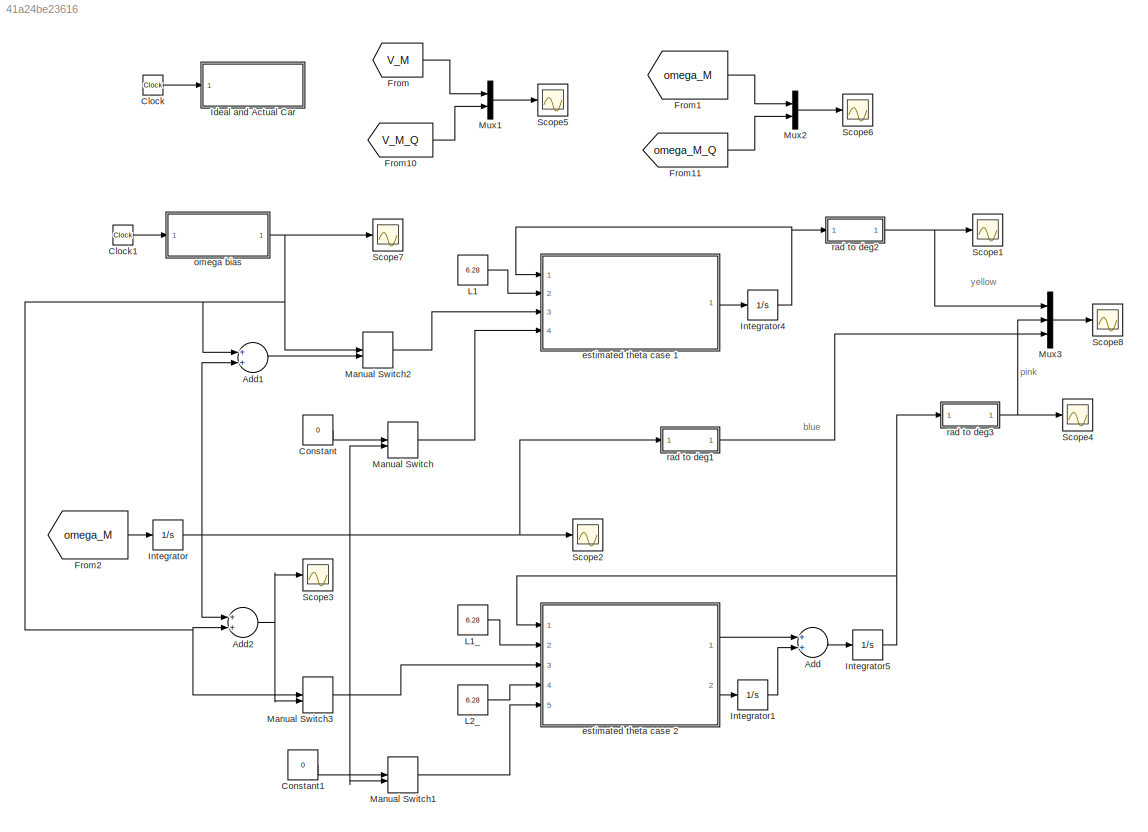
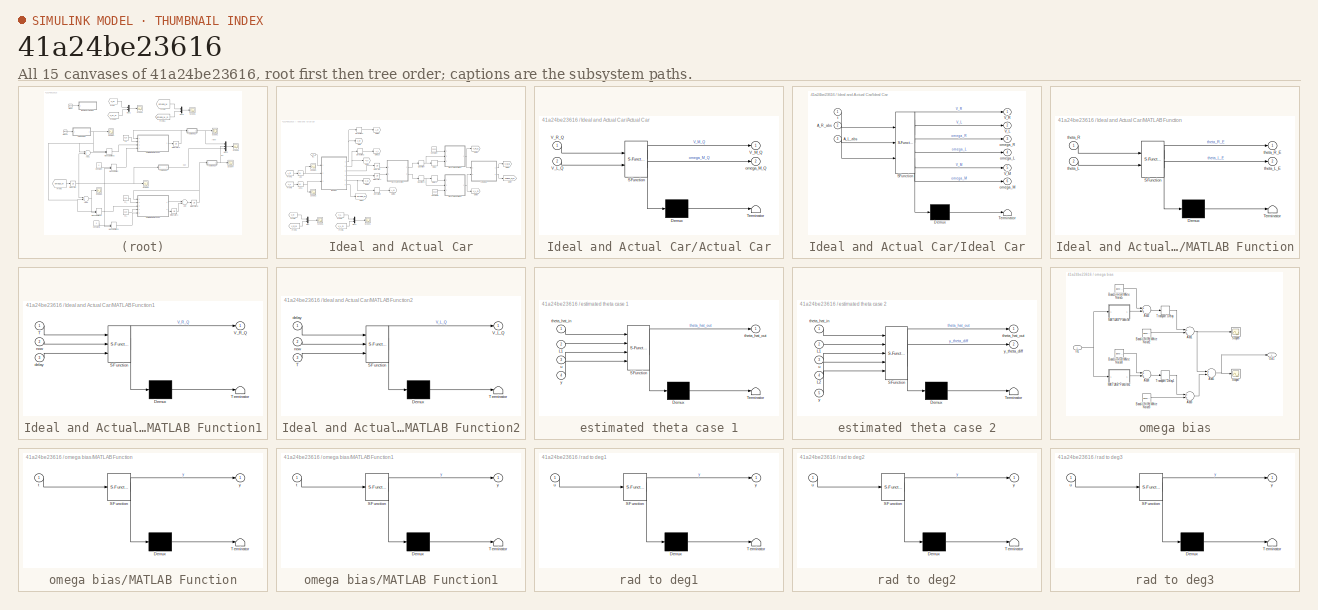
[diagram: thumbnail index - all 15 canvases of the model, root first then tree order]
MODEL slx_41a24be23616
KIND model
BLOCK [Sum] Add
  InputSameDT = off
  OutDataTypeStr = Inherit: Inherit via internal rule
  Ports = [2, 1]
  SaturateOnIntegerOverflow = off
BLOCK [Sum] Add1
  InputSameDT = off
  OutDataTypeStr = Inherit: Inherit via internal rule
  Ports = [2, 1]
  SaturateOnIntegerOverflow = off
BLOCK [Sum] Add2
  InputSameDT = off
  OutDataTypeStr = Inherit: Inherit via internal rule
  Ports = [2, 1]
  SaturateOnIntegerOverflow = off
BLOCK [Clock] Clock
BLOCK [Clock] Clock1
BLOCK [Constant] Constant
  Value = 0
BLOCK [Constant] Constant1
  Value = 0
BLOCK [From] From
  GotoTag = V_M
  TagVisibility = global
BLOCK [From] From1
  GotoTag = omega_M
  TagVisibility = global
BLOCK [From] From10
  GotoTag = V_M_Q
  TagVisibility = global
BLOCK [From] From11
  GotoTag = omega_M_Q
  TagVisibility = global
BLOCK [From] From2
  GotoTag = omega_M
  TagVisibility = global
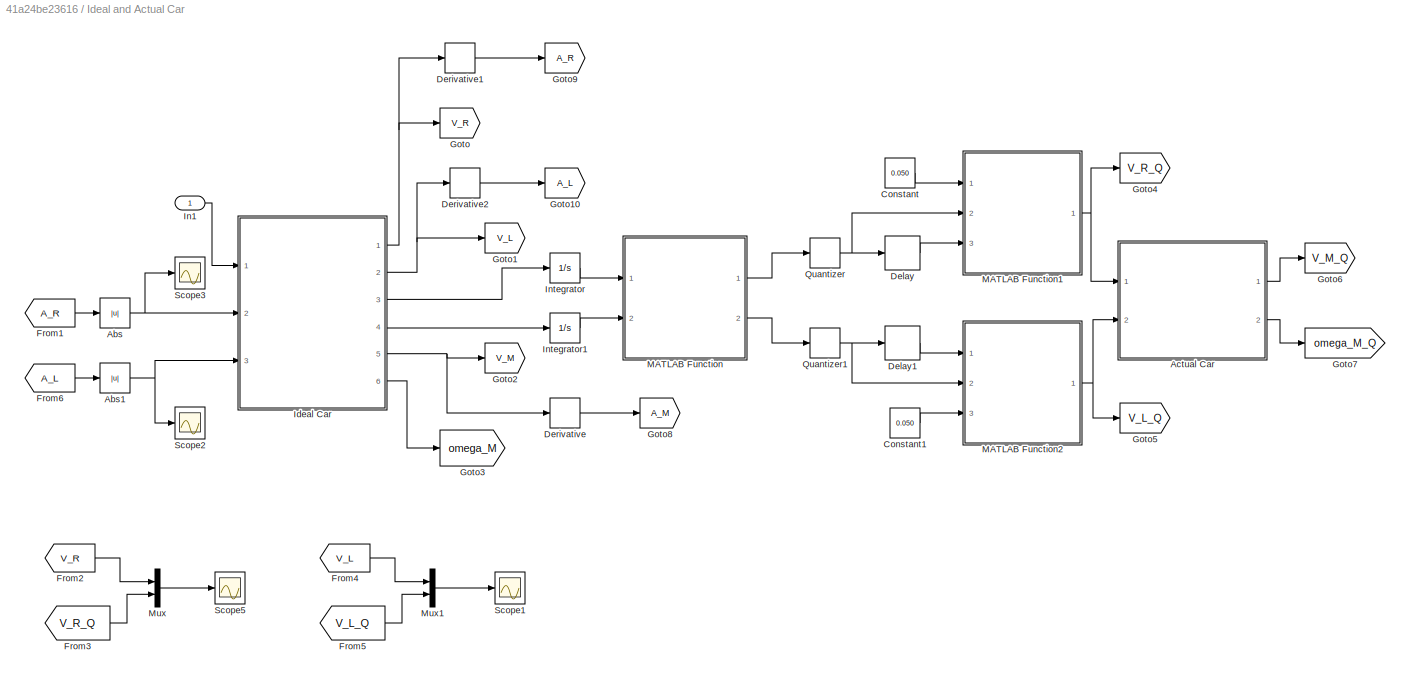
BLOCK [SubSystem] Ideal and Actual Car
  FunctionWithSeparateData = off
  MaskHideContents = off
  MinAlgLoopOccurrences = off
  Opaque = off
  Ports = [1]
  PropExecContextOutsideSubsystem = off
  RTWSystemCode = Auto
  RequestExecContextInheritance = off
BLOCK [Abs] Ideal and Actual Car/Abs
  SaturateOnIntegerOverflow = off
BLOCK [Abs] Ideal and Actual Car/Abs1
  SaturateOnIntegerOverflow = off
BLOCK [SubSystem] Ideal and Actual Car/Actual Car
  ErrorFcn = Stateflow.Translate.translate
  FunctionWithSeparateData = off
  MaskHideContents = off
  MinAlgLoopOccurrences = off
  Opaque = off
  PermitHierarchicalResolution = ExplicitOnly
  Ports = [2, 2]
  PropExecContextOutsideSubsystem = off
  RTWSystemCode = Auto
  RequestExecContextInheritance = off
  SFBlockType = MATLAB Function
  TreatAsAtomicUnit = on
BLOCK [Demux] Ideal and Actual Car/Actual Car/ Demux 
  Outputs = 1
  Ports = [1, 1]
BLOCK [S-Function] Ideal and Actual Car/Actual Car/ SFunction 
  EnableBusSupport = on
  FunctionName = sf_sfun
  Parameters = w
  PortCounts = [2 3]
  Ports = [2, 3]
  Tag = Stateflow S-Function car_sim 5
BLOCK [Terminator] Ideal and Actual Car/Actual Car/ Terminator 
BLOCK [Inport] Ideal and Actual Car/Actual Car/V_L_Q
  IconDisplay = Port number
  Port = 2
BLOCK [Outport] Ideal and Actual Car/Actual Car/V_M_Q
  IconDisplay = Port number
BLOCK [Inport] Ideal and Actual Car/Actual Car/V_R_Q
  IconDisplay = Port number
BLOCK [Outport] Ideal and Actual Car/Actual Car/omega_M_Q
  IconDisplay = Port number
  Port = 2
BLOCK [Constant] Ideal and Actual Car/Constant
  Value = 0.050
BLOCK [Constant] Ideal and Actual Car/Constant1
  Value = 0.050
BLOCK [Delay] Ideal and Actual Car/Delay
  DelayLength = 50
  InputPortMap = u0
  Ports = [1, 1]
BLOCK [Delay] Ideal and Actual Car/Delay1
  DelayLength = 50
  InputPortMap = u0
  Ports = [1, 1]
BLOCK [Derivative] Ideal and Actual Car/Derivative
BLOCK [Derivative] Ideal and Actual Car/Derivative1
BLOCK [Derivative] Ideal and Actual Car/Derivative2
BLOCK [From] Ideal and Actual Car/From1
  GotoTag = A_R
  TagVisibility = global
BLOCK [From] Ideal and Actual Car/From2
  GotoTag = V_R
  TagVisibility = global
BLOCK [From] Ideal and Actual Car/From3
  GotoTag = V_R_Q
  TagVisibility = global
BLOCK [From] Ideal and Actual Car/From4
  GotoTag = V_L
  TagVisibility = global
BLOCK [From] Ideal and Actual Car/From5
  GotoTag = V_L_Q
  TagVisibility = global
BLOCK [From] Ideal and Actual Car/From6
  GotoTag = A_L
  TagVisibility = global
BLOCK [Goto] Ideal and Actual Car/Goto
  GotoTag = V_R
  TagVisibility = global
BLOCK [Goto] Ideal and Actual Car/Goto1
  GotoTag = V_L
  TagVisibility = global
BLOCK [Goto] Ideal and Actual Car/Goto10
  GotoTag = A_L
  TagVisibility = global
BLOCK [Goto] Ideal and Actual Car/Goto2
  GotoTag = V_M
  TagVisibility = global
BLOCK [Goto] Ideal and Actual Car/Goto3
  GotoTag = omega_M
  TagVisibility = global
BLOCK [Goto] Ideal and Actual Car/Goto4
  GotoTag = V_R_Q
  TagVisibility = global
BLOCK [Goto] Ideal and Actual Car/Goto5
  GotoTag = V_L_Q
  TagVisibility = global
BLOCK [Goto] Ideal and Actual Car/Goto6
  GotoTag = V_M_Q
  TagVisibility = global
BLOCK [Goto] Ideal and Actual Car/Goto7
  GotoTag = omega_M_Q
  TagVisibility = global
BLOCK [Goto] Ideal and Actual Car/Goto8
  GotoTag = A_M
  TagVisibility = global
BLOCK [Goto] Ideal and Actual Car/Goto9
  GotoTag = A_R
  TagVisibility = global
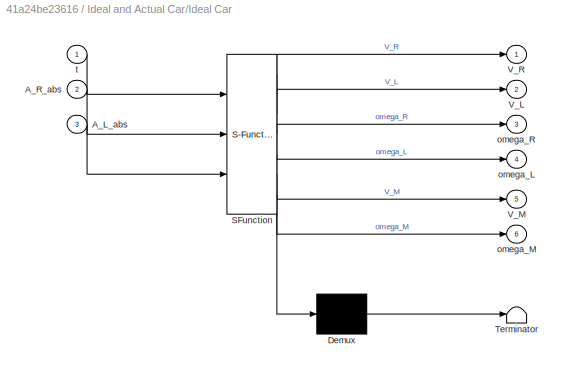
BLOCK [SubSystem] Ideal and Actual Car/Ideal Car
  ErrorFcn = Stateflow.Translate.translate
  FunctionWithSeparateData = off
  MaskHideContents = off
  MinAlgLoopOccurrences = off
  Opaque = off
  PermitHierarchicalResolution = ExplicitOnly
  Ports = [3, 6]
  PropExecContextOutsideSubsystem = off
  RTWSystemCode = Auto
  RequestExecContextInheritance = off
  SFBlockType = MATLAB Function
  TreatAsAtomicUnit = on
BLOCK [Demux] Ideal and Actual Car/Ideal Car/ Demux 
  Outputs = 1
  Ports = [1, 1]
BLOCK [S-Function] Ideal and Actual Car/Ideal Car/ SFunction 
  EnableBusSupport = on
  FunctionName = sf_sfun
  Parameters = r,w
  PortCounts = [3 7]
  Ports = [3, 7]
  Tag = Stateflow S-Function car_sim 2
BLOCK [Terminator] Ideal and Actual Car/Ideal Car/ Terminator 
BLOCK [Inport] Ideal and Actual Car/Ideal Car/A_L_abs
  IconDisplay = Port number
  Port = 3
BLOCK [Inport] Ideal and Actual Car/Ideal Car/A_R_abs
  IconDisplay = Port number
  Port = 2
BLOCK [Outport] Ideal and Actual Car/Ideal Car/V_L
  IconDisplay = Port number
  Port = 2
BLOCK [Outport] Ideal and Actual Car/Ideal Car/V_M
  IconDisplay = Port number
  Port = 5
BLOCK [Outport] Ideal and Actual Car/Ideal Car/V_R
  IconDisplay = Port number
BLOCK [Outport] Ideal and Actual Car/Ideal Car/omega_L
  IconDisplay = Port number
  Port = 4
BLOCK [Outport] Ideal and Actual Car/Ideal Car/omega_M
  IconDisplay = Port number
  Port = 6
BLOCK [Outport] Ideal and Actual Car/Ideal Car/omega_R
  IconDisplay = Port number
  Port = 3
BLOCK [Inport] Ideal and Actual Car/Ideal Car/t
  IconDisplay = Port number
BLOCK [Inport] Ideal and Actual Car/In1
  IconDisplay = Port number
BLOCK [Integrator] Ideal and Actual Car/Integrator
  Ports = [1, 1]
BLOCK [Integrator] Ideal and Actual Car/Integrator1
  Ports = [1, 1]
BLOCK [SubSystem] Ideal and Actual Car/MATLAB Function
  ErrorFcn = Stateflow.Translate.translate
  FunctionWithSeparateData = off
  MaskHideContents = off
  MinAlgLoopOccurrences = off
  Opaque = off
  PermitHierarchicalResolution = ExplicitOnly
  Ports = [2, 2]
  PropExecContextOutsideSubsystem = off
  RTWSystemCode = Auto
  RequestExecContextInheritance = off
  SFBlockType = MATLAB Function
  TreatAsAtomicUnit = on
BLOCK [Demux] Ideal and Actual Car/MATLAB Function/ Demux 
  Outputs = 1
  Ports = [1, 1]
BLOCK [S-Function] Ideal and Actual Car/MATLAB Function/ SFunction 
  EnableBusSupport = on
  FunctionName = sf_sfun
  Parameters = n
  PortCounts = [2 3]
  Ports = [2, 3]
  Tag = Stateflow S-Function car_sim 1
BLOCK [Terminator] Ideal and Actual Car/MATLAB Function/ Terminator 
BLOCK [Inport] Ideal and Actual Car/MATLAB Function/theta_L
  IconDisplay = Port number
  Port = 2
BLOCK [Outport] Ideal and Actual Car/MATLAB Function/theta_L_E
  IconDisplay = Port number
  Port = 2
BLOCK [Inport] Ideal and Actual Car/MATLAB Function/theta_R
  IconDisplay = Port number
BLOCK [Outport] Ideal and Actual Car/MATLAB Function/theta_R_E
  IconDisplay = Port number
BLOCK [SubSystem] Ideal and Actual Car/MATLAB Function1
  ErrorFcn = Stateflow.Translate.translate
  FunctionWithSeparateData = off
  MaskHideContents = off
  MinAlgLoopOccurrences = off
  Opaque = off
  PermitHierarchicalResolution = ExplicitOnly
  Ports = [3, 1]
  PropExecContextOutsideSubsystem = off
  RTWSystemCode = Auto
  RequestExecContextInheritance = off
  SFBlockType = MATLAB Function
  TreatAsAtomicUnit = on
BLOCK [Demux] Ideal and Actual Car/MATLAB Function1/ Demux 
  Outputs = 1
  Ports = [1, 1]
BLOCK [S-Function] Ideal and Actual Car/MATLAB Function1/ SFunction 
  EnableBusSupport = on
  FunctionName = sf_sfun
  Parameters = n,r
  PortCounts = [3 2]
  Ports = [3, 2]
  Tag = Stateflow S-Function car_sim 3
BLOCK [Terminator] Ideal and Actual Car/MATLAB Function1/ Terminator 
BLOCK [Inport] Ideal and Actual Car/MATLAB Function1/T
  IconDisplay = Port number
BLOCK [Outport] Ideal and Actual Car/MATLAB Function1/V_R_Q
  IconDisplay = Port number
BLOCK [Inport] Ideal and Actual Car/MATLAB Function1/delay
  IconDisplay = Port number
  Port = 3
BLOCK [Inport] Ideal and Actual Car/MATLAB Function1/now
  IconDisplay = Port number
  Port = 2
BLOCK [SubSystem] Ideal and Actual Car/MATLAB Function2
  ErrorFcn = Stateflow.Translate.translate
  FunctionWithSeparateData = off
  MaskHideContents = off
  MinAlgLoopOccurrences = off
  Opaque = off
  PermitHierarchicalResolution = ExplicitOnly
  Ports = [3, 1]
  PropExecContextOutsideSubsystem = off
  RTWSystemCode = Auto
  RequestExecContextInheritance = off
  SFBlockType = MATLAB Function
  TreatAsAtomicUnit = on
BLOCK [Demux] Ideal and Actual Car/MATLAB Function2/ Demux 
  Outputs = 1
  Ports = [1, 1]
BLOCK [S-Function] Ideal and Actual Car/MATLAB Function2/ SFunction 
  EnableBusSupport = on
  FunctionName = sf_sfun
  Parameters = n,r
  PortCounts = [3 2]
  Ports = [3, 2]
  Tag = Stateflow S-Function car_sim 4
BLOCK [Terminator] Ideal and Actual Car/MATLAB Function2/ Terminator 
BLOCK [Inport] Ideal and Actual Car/MATLAB Function2/T
  IconDisplay = Port number
  Port = 3
BLOCK [Outport] Ideal and Actual Car/MATLAB Function2/V_L_Q
  IconDisplay = Port number
BLOCK [Inport] Ideal and Actual Car/MATLAB Function2/delay
  IconDisplay = Port number
BLOCK [Inport] Ideal and Actual Car/MATLAB Function2/now
  IconDisplay = Port number
  Port = 2
BLOCK [Mux] Ideal and Actual Car/Mux
  DisplayOption = bar
  Inputs = 2
  Ports = [2, 1]
BLOCK [Mux] Ideal and Actual Car/Mux1
  DisplayOption = bar
  Inputs = 2
  Ports = [2, 1]
BLOCK [Quantizer] Ideal and Actual Car/Quantizer
  QuantizationInterval = 1
BLOCK [Quantizer] Ideal and Actual Car/Quantizer1
  QuantizationInterval = 1
BLOCK [Scope] Ideal and Actual Car/Scope1
  DataFormat = StructureWithTime
  Floating = off
  LimitDataPoints = off
  NumInputPorts = 1
  Ports = [1]
  SampleTime = 0
  SaveName = ScopeData2
  ShowLegends = off
BLOCK [Scope] Ideal and Actual Car/Scope2
  DataFormat = StructureWithTime
  Floating = off
  LimitDataPoints = off
  NumInputPorts = 1
  Ports = [1]
  SampleTime = 0
  SaveName = ScopeData12
  ShowLegends = off
BLOCK [Scope] Ideal and Actual Car/Scope3
  DataFormat = StructureWithTime
  Floating = off
  LimitDataPoints = off
  NumInputPorts = 1
  Ports = [1]
  SampleTime = 0
  SaveName = ScopeData14
  ShowLegends = off
BLOCK [Scope] Ideal and Actual Car/Scope5
  DataFormat = StructureWithTime
  Floating = off
  LimitDataPoints = off
  NumInputPorts = 1
  Ports = [1]
  SampleTime = 0
  SaveName = ScopeData1
  ShowLegends = off
  TimeRange = 10
  YMax = 1
  YMin = -1
BLOCK [Integrator] Integrator
  Ports = [1, 1]
BLOCK [Integrator] Integrator1
  Ports = [1, 1]
BLOCK [Integrator] Integrator4
  Ports = [1, 1]
BLOCK [Integrator] Integrator5
  Ports = [1, 1]
BLOCK [Constant] L1
  Value = 6.28
BLOCK [Constant] L1_
  Value = 6.28
BLOCK [Constant] L2_
  Value = 6.28
BLOCK [ManualSwitch] Manual Switch
  CurrentSetting = 0
BLOCK [ManualSwitch] Manual Switch1
  CurrentSetting = 0
BLOCK [ManualSwitch] Manual Switch2
  CurrentSetting = 0
BLOCK [ManualSwitch] Manual Switch3
  CurrentSetting = 0
BLOCK [Mux] Mux1
  DisplayOption = bar
  Inputs = 2
  Ports = [2, 1]
BLOCK [Mux] Mux2
  DisplayOption = bar
  Inputs = 2
  Ports = [2, 1]
BLOCK [Mux] Mux3
  DisplayOption = bar
  Inputs = 3
  Ports = [3, 1]
BLOCK [Scope] Scope1
  DataFormat = StructureWithTime
  Floating = off
  LimitDataPoints = off
  NumInputPorts = 1
  Ports = [1]
  SampleTime = 0
  SaveName = ScopeData11
  ShowLegends = off
  ZoomMode = yonly
BLOCK [Scope] Scope2
  DataFormat = StructureWithTime
  Floating = off
  LimitDataPoints = off
  NumInputPorts = 1
  Ports = [1]
  SampleTime = 0
  ShowLegends = off
BLOCK [Scope] Scope3
  DataFormat = StructureWithTime
  Floating = off
  LimitDataPoints = off
  NumInputPorts = 1
  Ports = [1]
  SampleTime = 0
  SaveName = ScopeData3
  ShowLegends = off
  ZoomMode = yonly
BLOCK [Scope] Scope4
  DataFormat = StructureWithTime
  Floating = off
  LimitDataPoints = off
  NumInputPorts = 1
  Ports = [1]
  SampleTime = 0
  SaveName = ScopeData15
  ShowLegends = off
  ZoomMode = yonly
BLOCK [Scope] Scope5
  DataFormat = StructureWithTime
  Floating = off
  LimitDataPoints = off
  NumInputPorts = 1
  Ports = [1]
  SampleTime = 0
  SaveName = ScopeData16
  ShowLegends = off
BLOCK [Scope] Scope6
  DataFormat = StructureWithTime
  Floating = off
  LimitDataPoints = off
  NumInputPorts = 1
  Ports = [1]
  SampleTime = 0
  SaveName = ScopeData17
  ShowLegends = off
BLOCK [Scope] Scope7
  DataFormat = StructureWithTime
  Floating = off
  LimitDataPoints = off
  NumInputPorts = 1
  Ports = [1]
  SampleTime = 0
  SaveName = ScopeData18
  ShowLegends = off
BLOCK [Scope] Scope8
  DataFormat = StructureWithTime
  Floating = off
  LimitDataPoints = off
  NumInputPorts = 1
  Ports = [1]
  SampleTime = 0
  SaveName = ScopeData19
  ShowLegends = off
  ZoomMode = yonly
BLOCK [SubSystem] estimated theta case 1
  ErrorFcn = Stateflow.Translate.translate
  FunctionWithSeparateData = off
  MaskHideContents = off
  MinAlgLoopOccurrences = off
  Opaque = off
  PermitHierarchicalResolution = ExplicitOnly
  Ports = [4, 1]
  PropExecContextOutsideSubsystem = off
  RTWSystemCode = Auto
  RequestExecContextInheritance = off
  SFBlockType = MATLAB Function
  TreatAsAtomicUnit = on
BLOCK [Demux] estimated theta case 1/ Demux 
  Outputs = 1
  Ports = [1, 1]
BLOCK [S-Function] estimated theta case 1/ SFunction 
  EnableBusSupport = on
  FunctionName = sf_sfun
  PortCounts = [4 2]
  Ports = [4, 2]
  Tag = Stateflow S-Function car_sim 15
BLOCK [Terminator] estimated theta case 1/ Terminator 
BLOCK [Inport] estimated theta case 1/L1
  IconDisplay = Port number
  Port = 2
BLOCK [Inport] estimated theta case 1/theta_hat_in
  IconDisplay = Port number
BLOCK [Outport] estimated theta case 1/theta_hat_out
  IconDisplay = Port number
BLOCK [Inport] estimated theta case 1/u
  IconDisplay = Port number
  Port = 3
BLOCK [Inport] estimated theta case 1/y
  IconDisplay = Port number
  Port = 4
BLOCK [SubSystem] estimated theta case 2
  ErrorFcn = Stateflow.Translate.translate
  FunctionWithSeparateData = off
  MaskHideContents = off
  MinAlgLoopOccurrences = off
  Opaque = off
  PermitHierarchicalResolution = ExplicitOnly
  Ports = [5, 2]
  PropExecContextOutsideSubsystem = off
  RTWSystemCode = Auto
  RequestExecContextInheritance = off
  SFBlockType = MATLAB Function
  TreatAsAtomicUnit = on
BLOCK [Demux] estimated theta case 2/ Demux 
  Outputs = 1
  Ports = [1, 1]
BLOCK [S-Function] estimated theta case 2/ SFunction 
  EnableBusSupport = on
  FunctionName = sf_sfun
  PortCounts = [5 3]
  Ports = [5, 3]
  Tag = Stateflow S-Function car_sim 17
BLOCK [Terminator] estimated theta case 2/ Terminator 
BLOCK [Inport] estimated theta case 2/L1
  IconDisplay = Port number
  Port = 2
BLOCK [Inport] estimated theta case 2/L2
  IconDisplay = Port number
  Port = 4
BLOCK [Inport] estimated theta case 2/theta_hat_in
  IconDisplay = Port number
BLOCK [Outport] estimated theta case 2/theta_hat_out
  IconDisplay = Port number
BLOCK [Inport] estimated theta case 2/u
  IconDisplay = Port number
  Port = 3
BLOCK [Inport] estimated theta case 2/y
  IconDisplay = Port number
  Port = 5
BLOCK [Outport] estimated theta case 2/y_theta_diff
  IconDisplay = Port number
  Port = 2
BLOCK [SubSystem] omega bias
  FunctionWithSeparateData = off
  MaskHideContents = off
  MinAlgLoopOccurrences = off
  Opaque = off
  Ports = [1, 1]
  PropExecContextOutsideSubsystem = off
  RTWSystemCode = Auto
  RequestExecContextInheritance = off
  TreatAsAtomicUnit = on
BLOCK [Sum] omega bias/Add1
  InputSameDT = off
  OutDataTypeStr = Inherit: Inherit via internal rule
  Ports = [2, 1]
  SaturateOnIntegerOverflow = off
BLOCK [Sum] omega bias/Add2
  InputSameDT = off
  OutDataTypeStr = Inherit: Inherit via internal rule
  Ports = [2, 1]
  SaturateOnIntegerOverflow = off
BLOCK [Sum] omega bias/Add3
  InputSameDT = off
  OutDataTypeStr = Inherit: Inherit via internal rule
  Ports = [2, 1]
  SaturateOnIntegerOverflow = off
BLOCK [Sum] omega bias/Add4
  InputSameDT = off
  OutDataTypeStr = Inherit: Inherit via internal rule
  Ports = [2, 1]
  SaturateOnIntegerOverflow = off
BLOCK [Sum] omega bias/Add5
  InputSameDT = off
  OutDataTypeStr = Inherit: Inherit via internal rule
  Ports = [2, 1]
  SaturateOnIntegerOverflow = off
BLOCK [Reference] omega bias/Band-Limited White Noise2  REF=simulink/Sources/Band-Limited
White Noise
  Cov = [0.00000001]
  Ports = [0, 1]
  SourceBlock = simulink/Sources/Band-Limited\nWhite Noise
  SourceType = Band-Limited White Noise.
  Ts = 0.001
  VectorParams1D = on
  seed = [23341]
BLOCK [Reference] omega bias/Band-Limited White Noise3  REF=simulink/Sources/Band-Limited
White Noise
  Cov = [0.00000001]
  Ports = [0, 1]
  SourceBlock = simulink/Sources/Band-Limited\nWhite Noise
  SourceType = Band-Limited White Noise.
  Ts = 0.001
  VectorParams1D = on
  seed = [23341]
BLOCK [Reference] omega bias/Band-Limited White Noise4  REF=simulink/Sources/Band-Limited
White Noise
  Cov = [0.00000001]
  Ports = [0, 1]
  SourceBlock = simulink/Sources/Band-Limited\nWhite Noise
  SourceType = Band-Limited White Noise.
  Ts = 0.001
  VectorParams1D = on
  seed = [23341]
BLOCK [Reference] omega bias/Band-Limited White Noise5  REF=simulink/Sources/Band-Limited
White Noise
  Cov = [0.00000001]
  Ports = [0, 1]
  SourceBlock = simulink/Sources/Band-Limited\nWhite Noise
  SourceType = Band-Limited White Noise.
  Ts = 0.001
  VectorParams1D = on
  seed = [23341]
BLOCK [Inport] omega bias/In1
  IconDisplay = Port number
BLOCK [SubSystem] omega bias/MATLAB Function
  ErrorFcn = Stateflow.Translate.translate
  FunctionWithSeparateData = off
  MaskHideContents = off
  MinAlgLoopOccurrences = off
  Opaque = off
  PermitHierarchicalResolution = ExplicitOnly
  Ports = [1, 1]
  PropExecContextOutsideSubsystem = off
  RTWSystemCode = Auto
  RequestExecContextInheritance = off
  SFBlockType = MATLAB Function
  TreatAsAtomicUnit = on
BLOCK [Demux] omega bias/MATLAB Function/ Demux 
  Outputs = 1
  Ports = [1, 1]
BLOCK [S-Function] omega bias/MATLAB Function/ SFunction 
  EnableBusSupport = on
  FunctionName = sf_sfun
  PortCounts = [1 2]
  Ports = [1, 2]
  Tag = Stateflow S-Function car_sim 14
BLOCK [Terminator] omega bias/MATLAB Function/ Terminator 
BLOCK [Inport] omega bias/MATLAB Function/t
  IconDisplay = Port number
BLOCK [Outport] omega bias/MATLAB Function/y
  IconDisplay = Port number
BLOCK [SubSystem] omega bias/MATLAB Function1
  ErrorFcn = Stateflow.Translate.translate
  FunctionWithSeparateData = off
  MaskHideContents = off
  MinAlgLoopOccurrences = off
  Opaque = off
  PermitHierarchicalResolution = ExplicitOnly
  Ports = [1, 1]
  PropExecContextOutsideSubsystem = off
  RTWSystemCode = Auto
  RequestExecContextInheritance = off
  SFBlockType = MATLAB Function
  TreatAsAtomicUnit = on
BLOCK [Demux] omega bias/MATLAB Function1/ Demux 
  Outputs = 1
  Ports = [1, 1]
BLOCK [S-Function] omega bias/MATLAB Function1/ SFunction 
  EnableBusSupport = on
  FunctionName = sf_sfun
  PortCounts = [1 2]
  Ports = [1, 2]
  Tag = Stateflow S-Function car_sim 16
BLOCK [Terminator] omega bias/MATLAB Function1/ Terminator 
BLOCK [Inport] omega bias/MATLAB Function1/t
  IconDisplay = Port number
BLOCK [Outport] omega bias/MATLAB Function1/y
  IconDisplay = Port number
BLOCK [Outport] omega bias/Out1
  IconDisplay = Port number
BLOCK [Scope] omega bias/Scope7
  DataFormat = StructureWithTime
  Floating = off
  LimitDataPoints = off
  NumInputPorts = 1
  Ports = [1]
  SampleTime = 0
  SaveName = ScopeData7
  ShowLegends = off
BLOCK [Scope] omega bias/Scope8
  DataFormat = StructureWithTime
  Floating = off
  LimitDataPoints = off
  NumInputPorts = 1
  Ports = [1]
  SampleTime = 0
  SaveName = ScopeData10
  ShowLegends = off
BLOCK [TransportDelay] omega bias/Transport Delay
  DelayTime = 4.5
  Ports = [1, 1]
BLOCK [TransportDelay] omega bias/Transport Delay1
  DelayTime = 3.5
  Ports = [1, 1]
BLOCK [SubSystem] rad to deg1
  ErrorFcn = Stateflow.Translate.translate
  FunctionWithSeparateData = off
  MaskHideContents = off
  MinAlgLoopOccurrences = off
  Opaque = off
  PermitHierarchicalResolution = ExplicitOnly
  Ports = [1, 1]
  PropExecContextOutsideSubsystem = off
  RTWSystemCode = Auto
  RequestExecContextInheritance = off
  SFBlockType = MATLAB Function
  TreatAsAtomicUnit = on
BLOCK [Demux] rad to deg1/ Demux 
  Outputs = 1
  Ports = [1, 1]
BLOCK [S-Function] rad to deg1/ SFunction 
  EnableBusSupport = on
  FunctionName = sf_sfun
  PortCounts = [1 2]
  Ports = [1, 2]
  Tag = Stateflow S-Function car_sim 6
BLOCK [Terminator] rad to deg1/ Terminator 
BLOCK [Inport] rad to deg1/u
  IconDisplay = Port number
BLOCK [Outport] rad to deg1/y
  IconDisplay = Port number
BLOCK [SubSystem] rad to deg2
  ErrorFcn = Stateflow.Translate.translate
  FunctionWithSeparateData = off
  MaskHideContents = off
  MinAlgLoopOccurrences = off
  Opaque = off
  PermitHierarchicalResolution = ExplicitOnly
  Ports = [1, 1]
  PropExecContextOutsideSubsystem = off
  RTWSystemCode = Auto
  RequestExecContextInheritance = off
  SFBlockType = MATLAB Function
  TreatAsAtomicUnit = on
BLOCK [Demux] rad to deg2/ Demux 
  Outputs = 1
  Ports = [1, 1]
BLOCK [S-Function] rad to deg2/ SFunction 
  EnableBusSupport = on
  FunctionName = sf_sfun
  PortCounts = [1 2]
  Ports = [1, 2]
  Tag = Stateflow S-Function car_sim 13
BLOCK [Terminator] rad to deg2/ Terminator 
BLOCK [Inport] rad to deg2/u
  IconDisplay = Port number
BLOCK [Outport] rad to deg2/y
  IconDisplay = Port number
BLOCK [SubSystem] rad to deg3
  ErrorFcn = Stateflow.Translate.translate
  FunctionWithSeparateData = off
  MaskHideContents = off
  MinAlgLoopOccurrences = off
  Opaque = off
  PermitHierarchicalResolution = ExplicitOnly
  Ports = [1, 1]
  PropExecContextOutsideSubsystem = off
  RTWSystemCode = Auto
  RequestExecContextInheritance = off
  SFBlockType = MATLAB Function
  TreatAsAtomicUnit = on
BLOCK [Demux] rad to deg3/ Demux 
  Outputs = 1
  Ports = [1, 1]
BLOCK [S-Function] rad to deg3/ SFunction 
  EnableBusSupport = on
  FunctionName = sf_sfun
  PortCounts = [1 2]
  Ports = [1, 2]
  Tag = Stateflow S-Function car_sim 20
BLOCK [Terminator] rad to deg3/ Terminator 
BLOCK [Inport] rad to deg3/u
  IconDisplay = Port number
BLOCK [Outport] rad to deg3/y
  IconDisplay = Port number
ANNOTATION (root): blue
ANNOTATION (root): pink
ANNOTATION (root): yellow
LINE Add1:1 -> Manual Switch2:2
NET Add2:1 -> Manual Switch3:2, Scope3:1
LINE Add:1 -> Integrator5:1
LINE Clock1:1 -> omega bias:1
LINE Clock:1 -> Ideal and Actual Car:1
LINE Constant1:1 -> Manual Switch1:1
LINE Constant:1 -> Manual Switch:1
LINE From10:1 -> Mux1:2
LINE From11:1 -> Mux2:2
LINE From1:1 -> Mux2:1
LINE From2:1 -> Integrator:1
LINE From:1 -> Mux1:1
NET Ideal and Actual Car/Abs1:1 -> Ideal and Actual Car/Ideal Car:3, Ideal and Actual Car/Scope2:1
NET Ideal and Actual Car/Abs:1 -> Ideal and Actual Car/Ideal Car:2, Ideal and Actual Car/Scope3:1
LINE Ideal and Actual Car/Actual Car:1 -> Ideal and Actual Car/Goto6:1
LINE Ideal and Actual Car/Actual Car:2 -> Ideal and Actual Car/Goto7:1
LINE Ideal and Actual Car/Constant1:1 -> Ideal and Actual Car/MATLAB Function2:3
LINE Ideal and Actual Car/Constant:1 -> Ideal and Actual Car/MATLAB Function1:1
LINE Ideal and Actual Car/Delay1:1 -> Ideal and Actual Car/MATLAB Function2:1
LINE Ideal and Actual Car/Delay:1 -> Ideal and Actual Car/MATLAB Function1:3
LINE Ideal and Actual Car/Derivative1:1 -> Ideal and Actual Car/Goto9:1
LINE Ideal and Actual Car/Derivative2:1 -> Ideal and Actual Car/Goto10:1
LINE Ideal and Actual Car/Derivative:1 -> Ideal and Actual Car/Goto8:1
LINE Ideal and Actual Car/From1:1 -> Ideal and Actual Car/Abs:1
LINE Ideal and Actual Car/From2:1 -> Ideal and Actual Car/Mux:1
LINE Ideal and Actual Car/From3:1 -> Ideal and Actual Car/Mux:2
LINE Ideal and Actual Car/From4:1 -> Ideal and Actual Car/Mux1:1
LINE Ideal and Actual Car/From5:1 -> Ideal and Actual Car/Mux1:2
LINE Ideal and Actual Car/From6:1 -> Ideal and Actual Car/Abs1:1
NET Ideal and Actual Car/Ideal Car:1 -> Ideal and Actual Car/Derivative1:1, Ideal and Actual Car/Goto:1
NET Ideal and Actual Car/Ideal Car:2 -> Ideal and Actual Car/Derivative2:1, Ideal and Actual Car/Goto1:1
LINE Ideal and Actual Car/Ideal Car:3 -> Ideal and Actual Car/Integrator:1
LINE Ideal and Actual Car/Ideal Car:4 -> Ideal and Actual Car/Integrator1:1
NET Ideal and Actual Car/Ideal Car:5 -> Ideal and Actual Car/Derivative:1, Ideal and Actual Car/Goto2:1
LINE Ideal and Actual Car/Ideal Car:6 -> Ideal and Actual Car/Goto3:1
LINE Ideal and Actual Car/In1:1 -> Ideal and Actual Car/Ideal Car:1
LINE Ideal and Actual Car/Integrator1:1 -> Ideal and Actual Car/MATLAB Function:2
LINE Ideal and Actual Car/Integrator:1 -> Ideal and Actual Car/MATLAB Function:1
NET Ideal and Actual Car/MATLAB Function1:1 -> Ideal and Actual Car/Actual Car:1, Ideal and Actual Car/Goto4:1
NET Ideal and Actual Car/MATLAB Function2:1 -> Ideal and Actual Car/Actual Car:2, Ideal and Actual Car/Goto5:1
LINE Ideal and Actual Car/MATLAB Function:1 -> Ideal and Actual Car/Quantizer:1
LINE Ideal and Actual Car/MATLAB Function:2 -> Ideal and Actual Car/Quantizer1:1
LINE Ideal and Actual Car/Mux1:1 -> Ideal and Actual Car/Scope1:1
LINE Ideal and Actual Car/Mux:1 -> Ideal and Actual Car/Scope5:1
NET Ideal and Actual Car/Quantizer1:1 -> Ideal and Actual Car/Delay1:1, Ideal and Actual Car/MATLAB Function2:2
NET Ideal and Actual Car/Quantizer:1 -> Ideal and Actual Car/Delay:1, Ideal and Actual Car/MATLAB Function1:2
LINE Integrator1:1 -> Add:2
NET Integrator4:1 -> estimated theta case 1:1, rad to deg2:1
NET Integrator5:1 -> estimated theta case 2:1, rad to deg3:1
NET Integrator:1 -> Add1:2, Add2:1, Manual Switch1:2, Manual Switch:2, Scope2:1, rad to deg1:1
LINE L1:1 -> estimated theta case 1:2
LINE L1_:1 -> estimated theta case 2:2
LINE L2_:1 -> estimated theta case 2:4
LINE Manual Switch1:1 -> estimated theta case 2:5
LINE Manual Switch2:1 -> estimated theta case 1:3
LINE Manual Switch3:1 -> estimated theta case 2:3
LINE Manual Switch:1 -> estimated theta case 1:4
LINE Mux1:1 -> Scope5:1
LINE Mux2:1 -> Scope6:1
LINE Mux3:1 -> Scope8:1
LINE estimated theta case 1:1 -> Integrator4:1
LINE estimated theta case 2:1 -> Add:1
LINE estimated theta case 2:2 -> Integrator1:1
NET omega bias/Add1:1 -> omega bias/Add5:1, omega bias/Scope8:1
LINE omega bias/Add2:1 -> omega bias/Transport Delay:1
LINE omega bias/Add3:1 -> omega bias/Add5:2
LINE omega bias/Add4:1 -> omega bias/Transport Delay1:1
NET omega bias/Add5:1 -> omega bias/Out1:1, omega bias/Scope7:1
LINE omega bias/Band-Limited White Noise2:1 -> omega bias/Add1:2
LINE omega bias/Band-Limited White Noise3:1 -> omega bias/Add3:2
LINE omega bias/Band-Limited White Noise4:1 -> omega bias/Add4:1
LINE omega bias/Band-Limited White Noise5:1 -> omega bias/Add2:1
NET omega bias/In1:1 -> omega bias/MATLAB Function1:1, omega bias/MATLAB Function:1
LINE omega bias/MATLAB Function1:1 -> omega bias/Add4:2
LINE omega bias/MATLAB Function:1 -> omega bias/Add2:2
LINE omega bias/Transport Delay1:1 -> omega bias/Add3:1
LINE omega bias/Transport Delay:1 -> omega bias/Add1:1
NET omega bias:1 -> Add1:1, Add2:2, Manual Switch2:1, Manual Switch3:1, Scope7:1
LINE rad to deg1:1 -> Mux3:3
NET rad to deg2:1 -> Mux3:1, Scope1:1
NET rad to deg3:1 -> Mux3:2, Scope4:1
note: NET lines group one-source signal fan-out (src -> all destinations, sorted); 1:1 wires keep LINE
